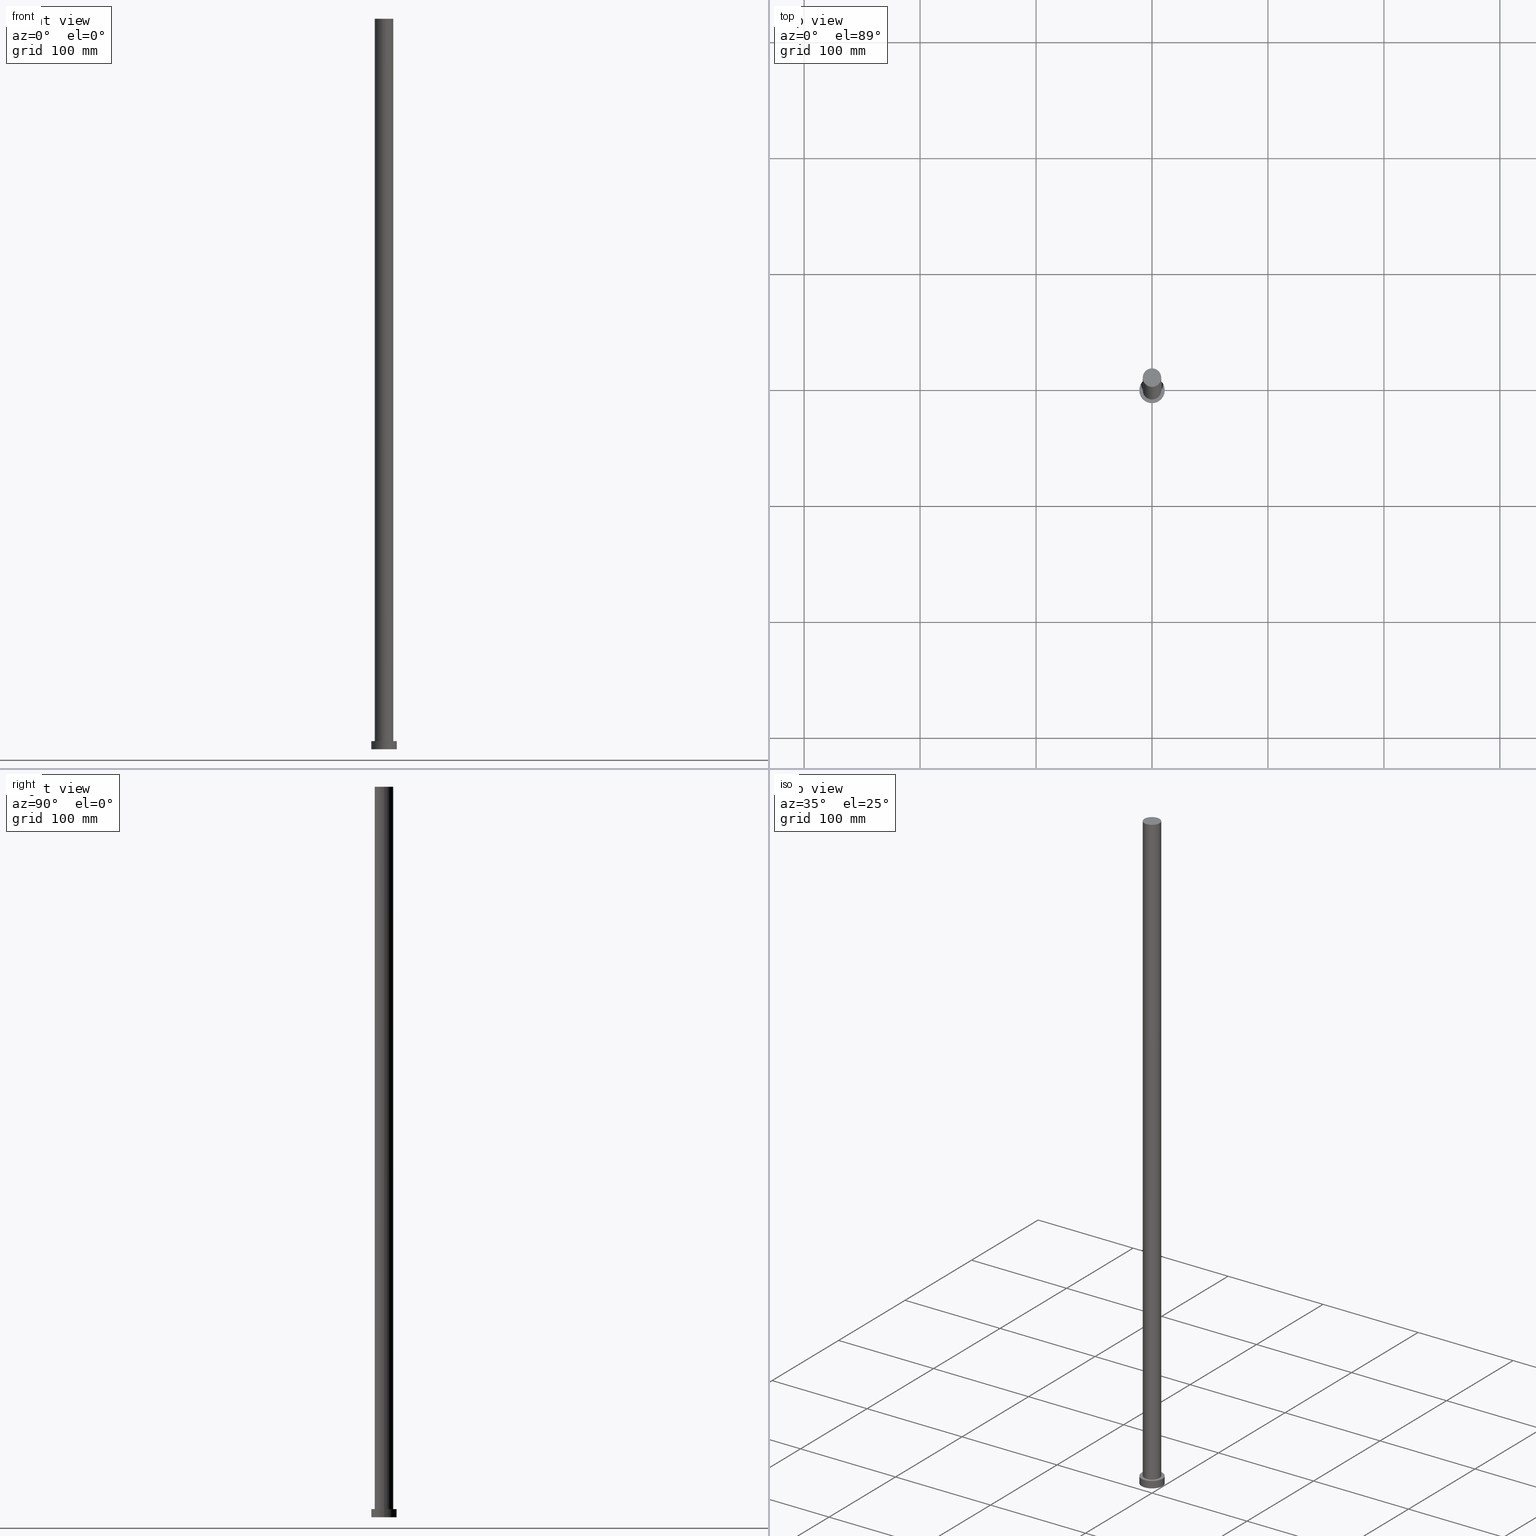
[diagram: canonical four-view strip — front | top / right | iso, engineering-drawing reading convention]
A machine part, canonical four-view strip (front | top / right | iso — engineering-drawing reading convention). The complete STEP part file that produces these views, byte-faithful:
ISO-10303-21;
HEADER;
FILE_DESCRIPTION (( 'STEP AP203' ),
    '1' );
FILE_NAME ('158f.STEP',
    '2023-02-13T09:20:21',
    ( '' ),
    ( '' ),
    'SwSTEP 2.0',
    'SolidWorks 2019',
    '' );
FILE_SCHEMA (( 'CONFIG_CONTROL_DESIGN' ));
ENDSEC;

DATA;
#1 = AXIS2_PLACEMENT_3D ( 'NONE', #3, #59, #157 ) ;
#2 = AXIS2_PLACEMENT_3D ( 'NONE', #73, #184, #189 ) ;
#3 = CARTESIAN_POINT ( 'NONE',  ( 0.000000000000000000, 0.000000000000000000, 0.000000000000000000 ) ) ;
#4 = DESIGN_CONTEXT ( 'detailed design', #233, 'design' ) ;
#5 = DIRECTION ( 'NONE',  ( 1.000000000000000000, 0.000000000000000000, 0.000000000000000000 ) ) ;
#6 = CIRCLE ( 'NONE', #54, 8.000000000000000000 ) ;
#7 = EDGE_LOOP ( 'NONE', ( #61, #44 ) ) ;
#8 = PRODUCT_RELATED_PRODUCT_CATEGORY ( 'detail', '', ( #105 ) ) ;
#9 = PRODUCT_DEFINITION_FORMATION_WITH_SPECIFIED_SOURCE ( 'LIBOVOLN�', '', #105, .NOT_KNOWN. ) ;
#10 = CYLINDRICAL_SURFACE ( 'NONE', #98, 8.000000000000000000 ) ;
#11 = ADVANCED_BREP_SHAPE_REPRESENTATION ( '158f', ( #218, #1 ), #186 ) ;
#12 = CARTESIAN_POINT ( 'NONE',  ( 0.000000000000000000, 0.000000000000000000, 0.000000000000000000 ) ) ;
#13 = CARTESIAN_POINT ( 'NONE',  ( 0.000000000000000000, 0.000000000000000000, 7.000000000000000000 ) ) ;
#14 = PLANE ( 'NONE',  #41 ) ;
#15 = FACE_BOUND ( 'NONE', #7, .T. ) ;
#16 = EDGE_CURVE ( 'NONE', #148, #23, #112, .T. ) ;
#17 = COORDINATED_UNIVERSAL_TIME_OFFSET ( 1, 0, .AHEAD. ) ;
#18 = AXIS2_PLACEMENT_3D ( 'NONE', #227, #141, #195 ) ;
#19 = PERSON_AND_ORGANIZATION ( #119, #103 ) ;
#20 = DIRECTION ( 'NONE',  ( 0.000000000000000000, 0.000000000000000000, 1.000000000000000000 ) ) ;
#21 = DIRECTION ( 'NONE',  ( 1.000000000000000000, 0.000000000000000000, -0.000000000000000000 ) ) ;
#22 = UNCERTAINTY_MEASURE_WITH_UNIT (LENGTH_MEASURE( 1.000000000000000082E-05 ), #140, 'distance_accuracy_value', 'NONE');
#23 = VERTEX_POINT ( 'NONE', #32 ) ;
#24 = PERSON_AND_ORGANIZATION ( #119, #103 ) ;
#25 = PRODUCT_DEFINITION_SHAPE ( 'NONE', 'NONE',  #30 ) ;
#26 = DIRECTION ( 'NONE',  ( -0.000000000000000000, -0.000000000000000000, -1.000000000000000000 ) ) ;
#27 = DIRECTION ( 'NONE',  ( -1.000000000000000000, 0.000000000000000000, 0.000000000000000000 ) ) ;
#28 = VECTOR ( 'NONE', #29, 1000.000000000000000 ) ;
#29 = DIRECTION ( 'NONE',  ( -0.000000000000000000, -0.000000000000000000, -1.000000000000000000 ) ) ;
#30 = PRODUCT_DEFINITION ( 'NEZN�M�', '', #9, #4 ) ;
#31 = DIRECTION ( 'NONE',  ( -1.000000000000000000, 0.000000000000000000, 0.000000000000000000 ) ) ;
#32 = CARTESIAN_POINT ( 'NONE',  ( 11.00000000000000000, 1.347111479062088405E-15, 0.000000000000000000 ) ) ;
#33 = DIRECTION ( 'NONE',  ( 1.000000000000000000, 0.000000000000000000, 0.000000000000000000 ) ) ;
#34 = DIRECTION ( 'NONE',  ( 0.000000000000000000, 0.000000000000000000, 1.000000000000000000 ) ) ;
#35 = PERSON_AND_ORGANIZATION_ROLE ( 'design_owner' ) ;
#36 = EDGE_CURVE ( 'NONE', #238, #170, #245, .T. ) ;
#37 = CALENDAR_DATE ( 2023, 13, 2 ) ;
#38 = ORIENTED_EDGE ( 'NONE', *, *, #219, .T. ) ;
#39 = CALENDAR_DATE ( 2023, 13, 2 ) ;
#40 = ORIENTED_EDGE ( 'NONE', *, *, #252, .F. ) ;
#41 = AXIS2_PLACEMENT_3D ( 'NONE', #251, #135, #74 ) ;
#42 = EDGE_CURVE ( 'NONE', #85, #182, #71, .T. ) ;
#43 = VECTOR ( 'NONE', #230, 1000.000000000000000 ) ;
#44 = ORIENTED_EDGE ( 'NONE', *, *, #57, .F. ) ;
#45 = VERTEX_POINT ( 'NONE', #151 ) ;
#46 = EDGE_LOOP ( 'NONE', ( #102, #243, #65, #40 ) ) ;
#47 = APPROVAL_PERSON_ORGANIZATION ( #19, #63, #159 ) ;
#48 = CARTESIAN_POINT ( 'NONE',  ( 0.000000000000000000, 0.000000000000000000, 630.0000000000000000 ) ) ;
#49 = EDGE_CURVE ( 'NONE', #23, #166, #114, .T. ) ;
#50 = DIRECTION ( 'NONE',  ( 0.000000000000000000, 0.000000000000000000, 1.000000000000000000 ) ) ;
#51 = CARTESIAN_POINT ( 'NONE',  ( 8.000000000000000000, 9.797174393178825657E-16, 7.000000000000000000 ) ) ;
#52 = CC_DESIGN_PERSON_AND_ORGANIZATION_ASSIGNMENT ( #160, #35, ( #105 ) ) ;
#53 = CYLINDRICAL_SURFACE ( 'NONE', #185, 11.00000000000000000 ) ;
#54 = AXIS2_PLACEMENT_3D ( 'NONE', #193, #75, #178 ) ;
#55 = ORIENTED_EDGE ( 'NONE', *, *, #36, .F. ) ;
#56 = CALENDAR_DATE ( 2023, 13, 2 ) ;
#57 = EDGE_CURVE ( 'NONE', #182, #170, #124, .T. ) ;
#58 = COORDINATED_UNIVERSAL_TIME_OFFSET ( 1, 0, .AHEAD. ) ;
#59 = DIRECTION ( 'NONE',  ( 0.000000000000000000, 0.000000000000000000, 1.000000000000000000 ) ) ;
#60 = VECTOR ( 'NONE', #207, 1000.000000000000000 ) ;
#61 = ORIENTED_EDGE ( 'NONE', *, *, #219, .F. ) ;
#62 = DATE_AND_TIME ( #104, #66 ) ;
#63 = APPROVAL ( #96, 'NEUR�EN�' ) ;
#64 = APPROVAL_STATUS ( 'not_yet_approved' ) ;
#65 = ORIENTED_EDGE ( 'NONE', *, *, #49, .T. ) ;
#66 = LOCAL_TIME ( 10, 20, 21.00000000000000000, #167 ) ;
#67 = SECURITY_CLASSIFICATION_LEVEL ( 'unclassified' ) ;
#68 = DATE_AND_TIME ( #39, #83 ) ;
#69 = ORIENTED_EDGE ( 'NONE', *, *, #42, .F. ) ;
#70 = CARTESIAN_POINT ( 'NONE',  ( 11.00000000000000000, 1.347111479062088405E-15, 7.000000000000000000 ) ) ;
#71 = LINE ( 'NONE', #153, #28 ) ;
#72 = DIRECTION ( 'NONE',  ( 1.000000000000000000, 0.000000000000000000, 0.000000000000000000 ) ) ;
#73 = CARTESIAN_POINT ( 'NONE',  ( 0.000000000000000000, 0.000000000000000000, 7.000000000000000000 ) ) ;
#74 = DIRECTION ( 'NONE',  ( 1.000000000000000000, 0.000000000000000000, -0.000000000000000000 ) ) ;
#75 = DIRECTION ( 'NONE',  ( 0.000000000000000000, 0.000000000000000000, 1.000000000000000000 ) ) ;
#76 = APPROVAL ( #64, 'NEUR�EN�' ) ;
#77 = APPROVAL_STATUS ( 'not_yet_approved' ) ;
#78 = CC_DESIGN_SECURITY_CLASSIFICATION ( #113, ( #9 ) ) ;
#79 = MECHANICAL_CONTEXT ( 'NONE', #249, 'mechanical' ) ;
#80 = SHAPE_DEFINITION_REPRESENTATION ( #25, #11 ) ;
#81 = EDGE_LOOP ( 'NONE', ( #69, #220, #145, #38 ) ) ;
#82 = AXIS2_PLACEMENT_3D ( 'NONE', #13, #50, #90 ) ;
#83 = LOCAL_TIME ( 10, 20, 21.00000000000000000, #58 ) ;
#84 = PERSON_AND_ORGANIZATION ( #119, #103 ) ;
#85 = VERTEX_POINT ( 'NONE', #150 ) ;
#86 = AXIS2_PLACEMENT_3D ( 'NONE', #120, #20, #33 ) ;
#87 = ADVANCED_FACE ( 'NONE', ( #117 ), #171, .F. ) ;
#88 = DIRECTION ( 'NONE',  ( -0.000000000000000000, -0.000000000000000000, -1.000000000000000000 ) ) ;
#89 = CARTESIAN_POINT ( 'NONE',  ( -8.000000000000000000, 0.000000000000000000, 7.000000000000000000 ) ) ;
#90 = DIRECTION ( 'NONE',  ( 1.000000000000000000, 0.000000000000000000, 0.000000000000000000 ) ) ;
#91 = CYLINDRICAL_SURFACE ( 'NONE', #222, 8.000000000000000000 ) ;
#92 = DIRECTION ( 'NONE',  ( 1.000000000000000000, 0.000000000000000000, 0.000000000000000000 ) ) ;
#93 = VECTOR ( 'NONE', #183, 1000.000000000000000 ) ;
#94 = DATE_AND_TIME ( #56, #215 ) ;
#95 = ADVANCED_FACE ( 'NONE', ( #172 ), #10, .T. ) ;
#96 = APPROVAL_STATUS ( 'not_yet_approved' ) ;
#97 = APPLICATION_PROTOCOL_DEFINITION ( 'international standard', 'config_control_design', 1994, #249 ) ;
#98 = AXIS2_PLACEMENT_3D ( 'NONE', #250, #155, #27 ) ;
#99 = ADVANCED_FACE ( 'NONE', ( #206 ), #248, .T. ) ;
#100 = AXIS2_PLACEMENT_3D ( 'NONE', #210, #122, #21 ) ;
#101 = APPROVAL_DATE_TIME ( #68, #161 ) ;
#102 = ORIENTED_EDGE ( 'NONE', *, *, #241, .F. ) ;
#103 = ORGANIZATION ( 'NEUR�EN�', 'NEUR�EN�', '' ) ;
#104 = CALENDAR_DATE ( 2023, 13, 2 ) ;
#105 = PRODUCT ( '158f', '158f', '', ( #79 ) ) ;
#106 = COORDINATED_UNIVERSAL_TIME_OFFSET ( 1, 0, .AHEAD. ) ;
#107 = CC_DESIGN_PERSON_AND_ORGANIZATION_ASSIGNMENT ( #236, #239, ( #9 ) ) ;
#108 = CIRCLE ( 'NONE', #86, 8.000000000000000000 ) ;
#109 = EDGE_LOOP ( 'NONE', ( #128, #143, #217, #244 ) ) ;
#110 = CARTESIAN_POINT ( 'NONE',  ( 11.00000000000000000, 1.347111479062088405E-15, 7.000000000000000000 ) ) ;
#111 = CC_DESIGN_DATE_AND_TIME_ASSIGNMENT ( #62, #237, ( #113 ) ) ;
#112 = LINE ( 'NONE', #70, #60 ) ;
#113 = SECURITY_CLASSIFICATION ( '', '', #67 ) ;
#114 = CIRCLE ( 'NONE', #246, 11.00000000000000000 ) ;
#115 = CARTESIAN_POINT ( 'NONE',  ( 0.000000000000000000, 0.000000000000000000, 0.000000000000000000 ) ) ;
#116 = DIRECTION ( 'NONE',  ( 0.000000000000000000, 0.000000000000000000, 1.000000000000000000 ) ) ;
#117 = FACE_OUTER_BOUND ( 'NONE', #149, .T. ) ;
#118 = CIRCLE ( 'NONE', #146, 8.000000000000000000 ) ;
#119 = PERSON ( 'NEUR�EN�', 'NEUR�EN�', 'NEUR�EN�', ('NEUR�EN�'), ('NEUR�EN�'), ('NEUR�EN�') ) ;
#120 = CARTESIAN_POINT ( 'NONE',  ( 0.000000000000000000, 0.000000000000000000, 630.0000000000000000 ) ) ;
#121 = DATE_AND_TIME ( #229, #247 ) ;
#122 = DIRECTION ( 'NONE',  ( 0.000000000000000000, 0.000000000000000000, 1.000000000000000000 ) ) ;
#123 = LINE ( 'NONE', #211, #43 ) ;
#124 = CIRCLE ( 'NONE', #82, 8.000000000000000000 ) ;
#125 = DATE_AND_TIME ( #37, #154 ) ;
#126 = ADVANCED_FACE ( 'NONE', ( #174 ), #91, .T. ) ;
#127 = ORIENTED_EDGE ( 'NONE', *, *, #57, .T. ) ;
#128 = ORIENTED_EDGE ( 'NONE', *, *, #16, .F. ) ;
#129 = ORIENTED_EDGE ( 'NONE', *, *, #131, .T. ) ;
#130 = CARTESIAN_POINT ( 'NONE',  ( -11.00000000000000000, 0.000000000000000000, 0.000000000000000000 ) ) ;
#131 = EDGE_CURVE ( 'NONE', #238, #85, #118, .T. ) ;
#132 = CARTESIAN_POINT ( 'NONE',  ( -8.000000000000000000, 0.000000000000000000, 630.0000000000000000 ) ) ;
#133 = FACE_OUTER_BOUND ( 'NONE', #163, .T. ) ;
#134 = APPROVAL_PERSON_ORGANIZATION ( #24, #76, #179 ) ;
#135 = DIRECTION ( 'NONE',  ( 0.000000000000000000, 0.000000000000000000, 1.000000000000000000 ) ) ;
#136 = ORIENTED_EDGE ( 'NONE', *, *, #228, .F. ) ;
#137 = APPLICATION_PROTOCOL_DEFINITION ( 'international standard', 'config_control_design', 1994, #233 ) ;
#138 = CIRCLE ( 'NONE', #142, 11.00000000000000000 ) ;
#139 = CARTESIAN_POINT ( 'NONE',  ( -8.000000000000000000, 0.000000000000000000, 630.0000000000000000 ) ) ;
#140 =( LENGTH_UNIT ( ) NAMED_UNIT ( * ) SI_UNIT ( .MILLI., .METRE. ) );
#141 = DIRECTION ( 'NONE',  ( 0.000000000000000000, 0.000000000000000000, 1.000000000000000000 ) ) ;
#142 = AXIS2_PLACEMENT_3D ( 'NONE', #12, #116, #72 ) ;
#143 = ORIENTED_EDGE ( 'NONE', *, *, #200, .F. ) ;
#144 = ORIENTED_EDGE ( 'NONE', *, *, #42, .T. ) ;
#145 = ORIENTED_EDGE ( 'NONE', *, *, #36, .T. ) ;
#146 = AXIS2_PLACEMENT_3D ( 'NONE', #48, #188, #225 ) ;
#147 = CC_DESIGN_PERSON_AND_ORGANIZATION_ASSIGNMENT ( #242, #164, ( #113 ) ) ;
#148 = VERTEX_POINT ( 'NONE', #110 ) ;
#149 = EDGE_LOOP ( 'NONE', ( #235, #197 ) ) ;
#150 = CARTESIAN_POINT ( 'NONE',  ( 8.000000000000000000, 9.797174393178825657E-16, 630.0000000000000000 ) ) ;
#151 = CARTESIAN_POINT ( 'NONE',  ( -11.00000000000000000, 0.000000000000000000, 7.000000000000000000 ) ) ;
#152 = CARTESIAN_POINT ( 'NONE',  ( 0.000000000000000000, 0.000000000000000000, 630.0000000000000000 ) ) ;
#153 = CARTESIAN_POINT ( 'NONE',  ( 8.000000000000000000, 9.797174393178825657E-16, 630.0000000000000000 ) ) ;
#154 = LOCAL_TIME ( 10, 20, 21.00000000000000000, #106 ) ;
#155 = DIRECTION ( 'NONE',  ( -0.000000000000000000, -0.000000000000000000, -1.000000000000000000 ) ) ;
#156 =( NAMED_UNIT ( * ) SI_UNIT ( $, .STERADIAN. ) SOLID_ANGLE_UNIT ( ) );
#157 = DIRECTION ( 'NONE',  ( 1.000000000000000000, 0.000000000000000000, 0.000000000000000000 ) ) ;
#158 = CC_DESIGN_PERSON_AND_ORGANIZATION_ASSIGNMENT ( #84, #198, ( #9 ) ) ;
#159 = APPROVAL_ROLE ( '' ) ;
#160 = PERSON_AND_ORGANIZATION ( #119, #103 ) ;
#161 = APPROVAL ( #77, 'NEUR�EN�' ) ;
#162 = CC_DESIGN_APPROVAL ( #76, ( #113 ) ) ;
#163 = EDGE_LOOP ( 'NONE', ( #216, #240 ) ) ;
#164 = PERSON_AND_ORGANIZATION_ROLE ( 'classification_officer' ) ;
#165 = EDGE_LOOP ( 'NONE', ( #136, #144, #127, #55 ) ) ;
#166 = VERTEX_POINT ( 'NONE', #130 ) ;
#167 = COORDINATED_UNIVERSAL_TIME_OFFSET ( 1, 0, .AHEAD. ) ;
#168 = DIRECTION ( 'NONE',  ( -1.000000000000000000, 0.000000000000000000, 0.000000000000000000 ) ) ;
#169 = EDGE_CURVE ( 'NONE', #166, #23, #138, .T. ) ;
#170 = VERTEX_POINT ( 'NONE', #89 ) ;
#171 = PLANE ( 'NONE',  #181 ) ;
#172 = FACE_OUTER_BOUND ( 'NONE', #165, .T. ) ;
#173 = ADVANCED_FACE ( 'NONE', ( #224 ), #53, .T. ) ;
#174 = FACE_OUTER_BOUND ( 'NONE', #81, .T. ) ;
#175 = APPROVAL_DATE_TIME ( #94, #63 ) ;
#176 = FACE_OUTER_BOUND ( 'NONE', #212, .T. ) ;
#177 =( NAMED_UNIT ( * ) PLANE_ANGLE_UNIT ( ) SI_UNIT ( $, .RADIAN. ) );
#178 = DIRECTION ( 'NONE',  ( 1.000000000000000000, 0.000000000000000000, 0.000000000000000000 ) ) ;
#179 = APPROVAL_ROLE ( '' ) ;
#180 = CIRCLE ( 'NONE', #226, 11.00000000000000000 ) ;
#181 = AXIS2_PLACEMENT_3D ( 'NONE', #115, #203, #221 ) ;
#182 = VERTEX_POINT ( 'NONE', #51 ) ;
#183 = DIRECTION ( 'NONE',  ( -0.000000000000000000, -0.000000000000000000, -1.000000000000000000 ) ) ;
#184 = DIRECTION ( 'NONE',  ( -0.000000000000000000, -0.000000000000000000, -1.000000000000000000 ) ) ;
#185 = AXIS2_PLACEMENT_3D ( 'NONE', #202, #26, #31 ) ;
#186 =( GEOMETRIC_REPRESENTATION_CONTEXT ( 3 ) GLOBAL_UNCERTAINTY_ASSIGNED_CONTEXT ( ( #22 ) ) GLOBAL_UNIT_ASSIGNED_CONTEXT ( ( #140, #177, #156 ) ) REPRESENTATION_CONTEXT ( 'NONE', 'WORKASPACE' ) );
#187 = CC_DESIGN_DATE_AND_TIME_ASSIGNMENT ( #121, #192, ( #30 ) ) ;
#188 = DIRECTION ( 'NONE',  ( 0.000000000000000000, 0.000000000000000000, 1.000000000000000000 ) ) ;
#189 = DIRECTION ( 'NONE',  ( -1.000000000000000000, 0.000000000000000000, 0.000000000000000000 ) ) ;
#190 = CARTESIAN_POINT ( 'NONE',  ( 0.000000000000000000, 0.000000000000000000, 7.000000000000000000 ) ) ;
#191 = ADVANCED_FACE ( 'NONE', ( #15, #133 ), #14, .T. ) ;
#192 = DATE_TIME_ROLE ( 'creation_date' ) ;
#193 = CARTESIAN_POINT ( 'NONE',  ( 0.000000000000000000, 0.000000000000000000, 7.000000000000000000 ) ) ;
#194 = APPROVAL_PERSON_ORGANIZATION ( #255, #161, #232 ) ;
#195 = DIRECTION ( 'NONE',  ( 1.000000000000000000, 0.000000000000000000, 0.000000000000000000 ) ) ;
#196 = CC_DESIGN_PERSON_AND_ORGANIZATION_ASSIGNMENT ( #208, #234, ( #30 ) ) ;
#197 = ORIENTED_EDGE ( 'NONE', *, *, #49, .F. ) ;
#198 = PERSON_AND_ORGANIZATION_ROLE ( 'design_supplier' ) ;
#199 = ORIENTED_EDGE ( 'NONE', *, *, #228, .T. ) ;
#200 = EDGE_CURVE ( 'NONE', #45, #148, #213, .T. ) ;
#201 = CC_DESIGN_APPROVAL ( #63, ( #30 ) ) ;
#202 = CARTESIAN_POINT ( 'NONE',  ( 0.000000000000000000, 0.000000000000000000, 7.000000000000000000 ) ) ;
#203 = DIRECTION ( 'NONE',  ( 0.000000000000000000, 0.000000000000000000, 1.000000000000000000 ) ) ;
#204 = CARTESIAN_POINT ( 'NONE',  ( 0.000000000000000000, 0.000000000000000000, 0.000000000000000000 ) ) ;
#205 = CC_DESIGN_APPROVAL ( #161, ( #9 ) ) ;
#206 = FACE_OUTER_BOUND ( 'NONE', #46, .T. ) ;
#207 = DIRECTION ( 'NONE',  ( -0.000000000000000000, -0.000000000000000000, -1.000000000000000000 ) ) ;
#208 = PERSON_AND_ORGANIZATION ( #119, #103 ) ;
#209 = ADVANCED_FACE ( 'NONE', ( #176 ), #254, .T. ) ;
#210 = CARTESIAN_POINT ( 'NONE',  ( 0.000000000000000000, 0.000000000000000000, 630.0000000000000000 ) ) ;
#211 = CARTESIAN_POINT ( 'NONE',  ( -11.00000000000000000, 0.000000000000000000, 7.000000000000000000 ) ) ;
#212 = EDGE_LOOP ( 'NONE', ( #129, #199 ) ) ;
#213 = CIRCLE ( 'NONE', #18, 11.00000000000000000 ) ;
#214 = APPROVAL_DATE_TIME ( #125, #76 ) ;
#215 = LOCAL_TIME ( 10, 20, 21.00000000000000000, #17 ) ;
#216 = ORIENTED_EDGE ( 'NONE', *, *, #200, .T. ) ;
#217 = ORIENTED_EDGE ( 'NONE', *, *, #252, .T. ) ;
#218 = MANIFOLD_SOLID_BREP ( 'P�idat vysunut�m3', #231 ) ;
#219 = EDGE_CURVE ( 'NONE', #170, #182, #6, .T. ) ;
#220 = ORIENTED_EDGE ( 'NONE', *, *, #131, .F. ) ;
#221 = DIRECTION ( 'NONE',  ( 1.000000000000000000, 0.000000000000000000, -0.000000000000000000 ) ) ;
#222 = AXIS2_PLACEMENT_3D ( 'NONE', #152, #88, #168 ) ;
#223 = DIRECTION ( 'NONE',  ( 0.000000000000000000, 0.000000000000000000, 1.000000000000000000 ) ) ;
#224 = FACE_OUTER_BOUND ( 'NONE', #109, .T. ) ;
#225 = DIRECTION ( 'NONE',  ( 1.000000000000000000, 0.000000000000000000, 0.000000000000000000 ) ) ;
#226 = AXIS2_PLACEMENT_3D ( 'NONE', #190, #34, #5 ) ;
#227 = CARTESIAN_POINT ( 'NONE',  ( 0.000000000000000000, 0.000000000000000000, 7.000000000000000000 ) ) ;
#228 = EDGE_CURVE ( 'NONE', #85, #238, #108, .T. ) ;
#229 = CALENDAR_DATE ( 2023, 13, 2 ) ;
#230 = DIRECTION ( 'NONE',  ( -0.000000000000000000, -0.000000000000000000, -1.000000000000000000 ) ) ;
#231 = CLOSED_SHELL ( 'NONE', ( #95, #99, #173, #191, #87, #126, #209 ) ) ;
#232 = APPROVAL_ROLE ( '' ) ;
#233 = APPLICATION_CONTEXT ( 'configuration controlled 3d designs of mechanical parts and assemblies' ) ;
#234 = PERSON_AND_ORGANIZATION_ROLE ( 'creator' ) ;
#235 = ORIENTED_EDGE ( 'NONE', *, *, #169, .F. ) ;
#236 = PERSON_AND_ORGANIZATION ( #119, #103 ) ;
#237 = DATE_TIME_ROLE ( 'classification_date' ) ;
#238 = VERTEX_POINT ( 'NONE', #139 ) ;
#239 = PERSON_AND_ORGANIZATION_ROLE ( 'creator' ) ;
#240 = ORIENTED_EDGE ( 'NONE', *, *, #241, .T. ) ;
#241 = EDGE_CURVE ( 'NONE', #148, #45, #180, .T. ) ;
#242 = PERSON_AND_ORGANIZATION ( #119, #103 ) ;
#243 = ORIENTED_EDGE ( 'NONE', *, *, #16, .T. ) ;
#244 = ORIENTED_EDGE ( 'NONE', *, *, #169, .T. ) ;
#245 = LINE ( 'NONE', #132, #93 ) ;
#246 = AXIS2_PLACEMENT_3D ( 'NONE', #204, #223, #92 ) ;
#247 = LOCAL_TIME ( 10, 20, 21.00000000000000000, #253 ) ;
#248 = CYLINDRICAL_SURFACE ( 'NONE', #2, 11.00000000000000000 ) ;
#249 = APPLICATION_CONTEXT ( 'configuration controlled 3d designs of mechanical parts and assemblies' ) ;
#250 = CARTESIAN_POINT ( 'NONE',  ( 0.000000000000000000, 0.000000000000000000, 630.0000000000000000 ) ) ;
#251 = CARTESIAN_POINT ( 'NONE',  ( 0.000000000000000000, 0.000000000000000000, 7.000000000000000000 ) ) ;
#252 = EDGE_CURVE ( 'NONE', #45, #166, #123, .T. ) ;
#253 = COORDINATED_UNIVERSAL_TIME_OFFSET ( 1, 0, .AHEAD. ) ;
#254 = PLANE ( 'NONE',  #100 ) ;
#255 = PERSON_AND_ORGANIZATION ( #119, #103 ) ;
ENDSEC;
END-ISO-10303-21;
